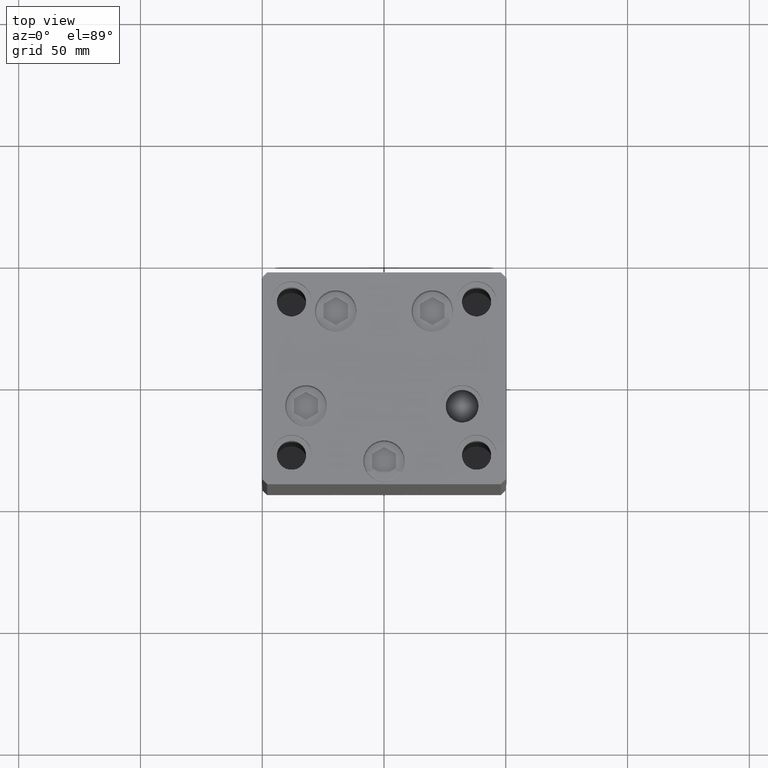
[diagram: clean part render]
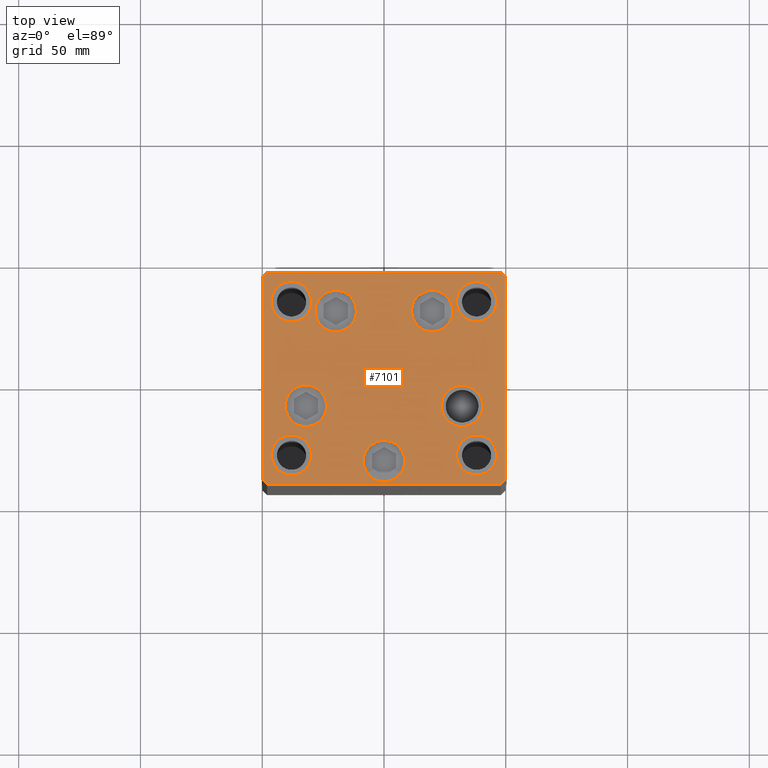
[diagram: same view with one face highlighted and labeled with its STEP entity id]
A machine part, top view. The second image highlights one B-rep face of the part: STEP entity #7101.
In plain terms, the highlighted planar face has unit normal (0, 0, 1).
Its self-contained STEP definition (entity closure, byte-faithful):
#205 = VERTEX_POINT ( 'NONE', #33631 ) ;
#304 = AXIS2_PLACEMENT_3D ( 'NONE', #5338, #43687, #9354 ) ;
#341 = ORIENTED_EDGE ( 'NONE', *, *, #17308, .F. ) ;
#440 = VERTEX_POINT ( 'NONE', #44360 ) ;
#477 = FACE_BOUND ( 'NONE', #21973, .T. ) ;
#513 = EDGE_CURVE ( 'NONE', #1787, #21603, #39942, .T. ) ;
#662 = CARTESIAN_POINT ( 'NONE',  ( -29.74999999999999289, -31.50000000000000000, 0.000000000000000000 ) ) ;
#839 = CARTESIAN_POINT ( 'NONE',  ( 38.00000000000000000, 31.49999999999999289, 0.000000000000000000 ) ) ;
#1787 = VERTEX_POINT ( 'NONE', #34531 ) ;
#1793 = CARTESIAN_POINT ( 'NONE',  ( 32.05550741379015278, -11.33333333333333037, 0.000000000000000000 ) ) ;
#2087 = EDGE_LOOP ( 'NONE', ( #5303, #35404 ) ) ;
#2246 = DIRECTION ( 'NONE',  ( -1.000000000000000000, -3.614007241618350743E-16, 0.000000000000000000 ) ) ;
#2784 = AXIS2_PLACEMENT_3D ( 'NONE', #25981, #44769, #25496 ) ;
#2920 = CARTESIAN_POINT ( 'NONE',  ( 38.00000000000000000, -31.49999999999999289, 0.000000000000000000 ) ) ;
#3234 = CARTESIAN_POINT ( 'NONE',  ( 32.05550741379015278, -11.33333333333333037, 0.000000000000000000 ) ) ;
#3672 = DIRECTION ( 'NONE',  ( 1.000000000000000000, 0.000000000000000000, 0.000000000000000000 ) ) ;
#3888 = CARTESIAN_POINT ( 'NONE',  ( -40.55550741379015278, -11.33333333333333925, 0.000000000000000000 ) ) ;
#4084 = EDGE_CURVE ( 'NONE', #28752, #22103, #4833, .T. ) ;
#4117 = DIRECTION ( 'NONE',  ( 1.000000000000000000, 0.000000000000000000, 0.000000000000000000 ) ) ;
#4322 = EDGE_CURVE ( 'NONE', #22103, #28752, #8106, .T. ) ;
#4381 = ORIENTED_EDGE ( 'NONE', *, *, #46055, .T. ) ;
#4833 = CIRCLE ( 'NONE', #32875, 8.250000000000000000 ) ;
#4961 = FACE_BOUND ( 'NONE', #18416, .T. ) ;
#5303 = ORIENTED_EDGE ( 'NONE', *, *, #7027, .F. ) ;
#5338 = CARTESIAN_POINT ( 'NONE',  ( 4.163799117101000559E-15, -34.00000000000000000, 0.000000000000000000 ) ) ;
#5455 = CARTESIAN_POINT ( 'NONE',  ( 28.32068048781373193, 27.62500000000000000, 0.000000000000000000 ) ) ;
#5464 = CARTESIAN_POINT ( 'NONE',  ( -11.32068048781373726, 27.62499999999999645, 0.000000000000000000 ) ) ;
#5755 = AXIS2_PLACEMENT_3D ( 'NONE', #27321, #27809, #20298 ) ;
#6160 = CARTESIAN_POINT ( 'NONE',  ( -37.99999999999999289, -31.50000000000000000, 0.000000000000000000 ) ) ;
#6283 = ORIENTED_EDGE ( 'NONE', *, *, #11471, .T. ) ;
#6287 = ORIENTED_EDGE ( 'NONE', *, *, #26118, .T. ) ;
#6290 = CARTESIAN_POINT ( 'NONE',  ( 19.82068048781373193, 27.62500000000000000, 0.000000000000000000 ) ) ;
#7027 = EDGE_CURVE ( 'NONE', #7407, #14510, #25008, .T. ) ;
#7101 = ADVANCED_FACE ( 'NONE', ( #11533, #39308, #38333, #477, #46349, #4961, #8502, #19574, #16283, #19322 ), #15799, .T. ) ;
#7407 = VERTEX_POINT ( 'NONE', #662 ) ;
#7505 = DIRECTION ( 'NONE',  ( 0.000000000000000000, -0.000000000000000000, -1.000000000000000000 ) ) ;
#7780 = VERTEX_POINT ( 'NONE', #27702 ) ;
#8106 = CIRCLE ( 'NONE', #12132, 8.250000000000000000 ) ;
#8401 = LINE ( 'NONE', #11424, #48410 ) ;
#8456 = ORIENTED_EDGE ( 'NONE', *, *, #33471, .T. ) ;
#8502 = FACE_BOUND ( 'NONE', #2087, .T. ) ;
#8710 = DIRECTION ( 'NONE',  ( 1.000000000000000000, 0.000000000000000000, 0.000000000000000000 ) ) ;
#9208 = DIRECTION ( 'NONE',  ( -0.7071067811865474617, 0.7071067811865474617, 0.000000000000000000 ) ) ;
#9246 = CARTESIAN_POINT ( 'NONE',  ( 19.82068048781373193, 27.62500000000000000, 0.000000000000000000 ) ) ;
#9354 = DIRECTION ( 'NONE',  ( 1.000000000000000000, 0.000000000000000000, 0.000000000000000000 ) ) ;
#9385 = EDGE_LOOP ( 'NONE', ( #10556, #21736, #34931, #6287, #4381, #35960, #13083, #11682 ) ) ;
#9390 = VERTEX_POINT ( 'NONE', #42163 ) ;
#9523 = DIRECTION ( 'NONE',  ( 0.7071067811865474617, -0.7071067811865474617, 0.000000000000000000 ) ) ;
#9577 = DIRECTION ( 'NONE',  ( 1.000000000000000000, 0.000000000000000000, 0.000000000000000000 ) ) ;
#9657 = CARTESIAN_POINT ( 'NONE',  ( 38.00000000000000000, 31.49999999999999289, 0.000000000000000000 ) ) ;
#9683 = VECTOR ( 'NONE', #2246, 1000.000000000000000 ) ;
#9778 = CIRCLE ( 'NONE', #27418, 8.499999999999992895 ) ;
#10440 = ORIENTED_EDGE ( 'NONE', *, *, #4084, .F. ) ;
#10524 = DIRECTION ( 'NONE',  ( 1.000000000000000000, 0.000000000000000000, 0.000000000000000000 ) ) ;
#10556 = ORIENTED_EDGE ( 'NONE', *, *, #13878, .T. ) ;
#10604 = VERTEX_POINT ( 'NONE', #44575 ) ;
#11424 = CARTESIAN_POINT ( 'NONE',  ( -50.00000000000000711, 41.49999999999995026, 0.000000000000000000 ) ) ;
#11471 = EDGE_CURVE ( 'NONE', #15583, #440, #38739, .T. ) ;
#11533 = FACE_BOUND ( 'NONE', #18092, .T. ) ;
#11682 = ORIENTED_EDGE ( 'NONE', *, *, #49176, .T. ) ;
#12132 = AXIS2_PLACEMENT_3D ( 'NONE', #839, #16162, #4117 ) ;
#12202 = AXIS2_PLACEMENT_3D ( 'NONE', #37835, #33343, #10524 ) ;
#12340 = VECTOR ( 'NONE', #9523, 1000.000000000000114 ) ;
#12977 = CARTESIAN_POINT ( 'NONE',  ( -32.05550741379015278, -11.33333333333333925, 0.000000000000000000 ) ) ;
#12982 = EDGE_CURVE ( 'NONE', #32765, #28135, #21116, .T. ) ;
#13083 = ORIENTED_EDGE ( 'NONE', *, *, #49017, .T. ) ;
#13095 = VECTOR ( 'NONE', #9208, 1000.000000000000114 ) ;
#13219 = DIRECTION ( 'NONE',  ( -1.003213576468515193E-15, 1.000000000000000000, 0.000000000000000000 ) ) ;
#13526 = VERTEX_POINT ( 'NONE', #37240 ) ;
#13800 = EDGE_CURVE ( 'NONE', #16009, #47664, #38692, .T. ) ;
#13815 = CARTESIAN_POINT ( 'NONE',  ( 47.99999999999999289, -43.50000000000001421, 0.000000000000000000 ) ) ;
#13878 = EDGE_CURVE ( 'NONE', #13526, #46249, #24344, .T. ) ;
#14147 = DIRECTION ( 'NONE',  ( 0.000000000000000000, 0.000000000000000000, 1.000000000000000000 ) ) ;
#14264 = AXIS2_PLACEMENT_3D ( 'NONE', #6290, #21610, #47404 ) ;
#14510 = VERTEX_POINT ( 'NONE', #22925 ) ;
#14535 = CARTESIAN_POINT ( 'NONE',  ( -19.82068048781373903, 27.62499999999999645, 0.000000000000000000 ) ) ;
#15522 = LINE ( 'NONE', #30802, #13095 ) ;
#15583 = VERTEX_POINT ( 'NONE', #20711 ) ;
#15694 = DIRECTION ( 'NONE',  ( 8.360113137237628665E-17, -1.000000000000000000, 0.000000000000000000 ) ) ;
#15720 = CARTESIAN_POINT ( 'NONE',  ( -19.82068048781373903, 27.62499999999999645, 0.000000000000000000 ) ) ;
#15799 = PLANE ( 'NONE',  #5755 ) ;
#15932 = CARTESIAN_POINT ( 'NONE',  ( 29.74999999999999645, 31.49999999999999289, 0.000000000000000000 ) ) ;
#16009 = VERTEX_POINT ( 'NONE', #47358 ) ;
#16035 = CARTESIAN_POINT ( 'NONE',  ( -29.75000000000000000, 31.50000000000000000, 0.000000000000000000 ) ) ;
#16042 = AXIS2_PLACEMENT_3D ( 'NONE', #15720, #19492, #22743 ) ;
#16162 = DIRECTION ( 'NONE',  ( 0.000000000000000000, 0.000000000000000000, 1.000000000000000000 ) ) ;
#16283 = FACE_BOUND ( 'NONE', #24253, .T. ) ;
#16957 = LINE ( 'NONE', #21226, #46365 ) ;
#17076 = LINE ( 'NONE', #32358, #9683 ) ;
#17133 = CIRCLE ( 'NONE', #33945, 8.250000000000000000 ) ;
#17308 = EDGE_CURVE ( 'NONE', #10604, #20390, #39600, .T. ) ;
#17574 = LINE ( 'NONE', #13815, #42320 ) ;
#17822 = CARTESIAN_POINT ( 'NONE',  ( 29.74999999999999645, -31.49999999999999289, 0.000000000000000000 ) ) ;
#17931 = AXIS2_PLACEMENT_3D ( 'NONE', #46320, #23284, #8710 ) ;
#18092 = EDGE_LOOP ( 'NONE', ( #37479, #8456 ) ) ;
#18241 = CARTESIAN_POINT ( 'NONE',  ( -38.00000000000000000, 31.50000000000000000, 0.000000000000000000 ) ) ;
#18349 = AXIS2_PLACEMENT_3D ( 'NONE', #14535, #22304, #22560 ) ;
#18416 = EDGE_LOOP ( 'NONE', ( #341, #31727 ) ) ;
#19322 = FACE_OUTER_BOUND ( 'NONE', #9385, .T. ) ;
#19492 = DIRECTION ( 'NONE',  ( 0.000000000000000000, -0.000000000000000000, -1.000000000000000000 ) ) ;
#19574 = FACE_BOUND ( 'NONE', #42065, .T. ) ;
#19743 = CARTESIAN_POINT ( 'NONE',  ( -48.00000000000000711, 43.49999999999996447, 0.000000000000000000 ) ) ;
#20298 = DIRECTION ( 'NONE',  ( 1.000000000000000000, 0.000000000000000000, 0.000000000000000000 ) ) ;
#20390 = VERTEX_POINT ( 'NONE', #17822 ) ;
#20711 = CARTESIAN_POINT ( 'NONE',  ( -8.499999999999996447, -34.00000000000000000, 0.000000000000000000 ) ) ;
#21014 = CIRCLE ( 'NONE', #33806, 8.250000000000000000 ) ;
#21050 = DIRECTION ( 'NONE',  ( 1.000000000000000000, 0.000000000000000000, 0.000000000000000000 ) ) ;
#21116 = CIRCLE ( 'NONE', #41875, 8.500000000000000000 ) ;
#21226 = CARTESIAN_POINT ( 'NONE',  ( -47.99999999999999289, -43.50000000000001421, 0.000000000000000000 ) ) ;
#21334 = CARTESIAN_POINT ( 'NONE',  ( -50.00000000000000000, -41.50000000000000000, 0.000000000000000000 ) ) ;
#21603 = VERTEX_POINT ( 'NONE', #5464 ) ;
#21610 = DIRECTION ( 'NONE',  ( 0.000000000000000000, -0.000000000000000000, -1.000000000000000000 ) ) ;
#21736 = ORIENTED_EDGE ( 'NONE', *, *, #32255, .T. ) ;
#21973 = EDGE_LOOP ( 'NONE', ( #6283, #33199 ) ) ;
#22103 = VERTEX_POINT ( 'NONE', #15932 ) ;
#22304 = DIRECTION ( 'NONE',  ( 0.000000000000000000, -0.000000000000000000, -1.000000000000000000 ) ) ;
#22560 = DIRECTION ( 'NONE',  ( 1.000000000000000000, 0.000000000000000000, 0.000000000000000000 ) ) ;
#22743 = DIRECTION ( 'NONE',  ( 1.000000000000000000, 0.000000000000000000, 0.000000000000000000 ) ) ;
#22925 = CARTESIAN_POINT ( 'NONE',  ( -46.24999999999999289, -31.50000000000000000, 0.000000000000000000 ) ) ;
#23284 = DIRECTION ( 'NONE',  ( 0.000000000000000000, -0.000000000000000000, -1.000000000000000000 ) ) ;
#23483 = CIRCLE ( 'NONE', #43444, 8.500000000000000000 ) ;
#23875 = EDGE_CURVE ( 'NONE', #28135, #32765, #35052, .T. ) ;
#23880 = ORIENTED_EDGE ( 'NONE', *, *, #13800, .F. ) ;
#24139 = EDGE_CURVE ( 'NONE', #26294, #38173, #41430, .T. ) ;
#24241 = DIRECTION ( 'NONE',  ( 1.000000000000000000, 0.000000000000000000, 0.000000000000000000 ) ) ;
#24253 = EDGE_LOOP ( 'NONE', ( #10440, #31706 ) ) ;
#24344 = LINE ( 'NONE', #21334, #12340 ) ;
#24397 = VECTOR ( 'NONE', #47456, 1000.000000000000000 ) ;
#24399 = DIRECTION ( 'NONE',  ( 0.000000000000000000, -0.000000000000000000, -1.000000000000000000 ) ) ;
#25008 = CIRCLE ( 'NONE', #12202, 8.250000000000000000 ) ;
#25351 = VERTEX_POINT ( 'NONE', #43259 ) ;
#25496 = DIRECTION ( 'NONE',  ( 1.000000000000000000, 0.000000000000000000, 0.000000000000000000 ) ) ;
#25739 = VERTEX_POINT ( 'NONE', #32685 ) ;
#25981 = CARTESIAN_POINT ( 'NONE',  ( 38.00000000000000000, -31.49999999999999289, 0.000000000000000000 ) ) ;
#26118 = EDGE_CURVE ( 'NONE', #205, #25739, #47525, .T. ) ;
#26294 = VERTEX_POINT ( 'NONE', #3888 ) ;
#26484 = EDGE_LOOP ( 'NONE', ( #35887, #30413 ) ) ;
#27062 = CIRCLE ( 'NONE', #35074, 8.499999999999992895 ) ;
#27321 = CARTESIAN_POINT ( 'NONE',  ( 0.000000000000000000, 0.000000000000000000, 0.000000000000000000 ) ) ;
#27418 = AXIS2_PLACEMENT_3D ( 'NONE', #1793, #24399, #9577 ) ;
#27702 = CARTESIAN_POINT ( 'NONE',  ( -50.00000000000000711, 41.49999999999995026, 0.000000000000000000 ) ) ;
#27809 = DIRECTION ( 'NONE',  ( -0.000000000000000000, 0.000000000000000000, 1.000000000000000000 ) ) ;
#27894 = EDGE_CURVE ( 'NONE', #9390, #35519, #27062, .T. ) ;
#28135 = VERTEX_POINT ( 'NONE', #5455 ) ;
#28752 = VERTEX_POINT ( 'NONE', #44621 ) ;
#28836 = CIRCLE ( 'NONE', #16042, 8.500000000000000000 ) ;
#29111 = EDGE_CURVE ( 'NONE', #14510, #7407, #43058, .T. ) ;
#29119 = CIRCLE ( 'NONE', #17931, 8.500000000000000000 ) ;
#29379 = VECTOR ( 'NONE', #13219, 1000.000000000000000 ) ;
#29424 = ORIENTED_EDGE ( 'NONE', *, *, #24139, .T. ) ;
#30332 = CARTESIAN_POINT ( 'NONE',  ( 47.99999999999999289, -43.50000000000001421, 0.000000000000000000 ) ) ;
#30413 = ORIENTED_EDGE ( 'NONE', *, *, #27894, .T. ) ;
#30484 = EDGE_CURVE ( 'NONE', #48389, #205, #17574, .T. ) ;
#30802 = CARTESIAN_POINT ( 'NONE',  ( 49.99999999999992184, 41.49999999999998579, 0.000000000000000000 ) ) ;
#31706 = ORIENTED_EDGE ( 'NONE', *, *, #4322, .F. ) ;
#31727 = ORIENTED_EDGE ( 'NONE', *, *, #43450, .F. ) ;
#31875 = CARTESIAN_POINT ( 'NONE',  ( 11.32068048781373015, 27.62500000000000000, 0.000000000000000000 ) ) ;
#31938 = LINE ( 'NONE', #47200, #24397 ) ;
#32102 = DIRECTION ( 'NONE',  ( 0.7071067811865463515, 0.7071067811865487940, 0.000000000000000000 ) ) ;
#32255 = EDGE_CURVE ( 'NONE', #46249, #48389, #16957, .T. ) ;
#32358 = CARTESIAN_POINT ( 'NONE',  ( 47.99999999999990763, 43.50000000000000000, 0.000000000000000000 ) ) ;
#32516 = ORIENTED_EDGE ( 'NONE', *, *, #12982, .T. ) ;
#32685 = CARTESIAN_POINT ( 'NONE',  ( 49.99999999999992184, 41.49999999999998579, 0.000000000000000000 ) ) ;
#32765 = VERTEX_POINT ( 'NONE', #31875 ) ;
#32875 = AXIS2_PLACEMENT_3D ( 'NONE', #9657, #47749, #47246 ) ;
#33199 = ORIENTED_EDGE ( 'NONE', *, *, #44825, .T. ) ;
#33343 = DIRECTION ( 'NONE',  ( 0.000000000000000000, 0.000000000000000000, 1.000000000000000000 ) ) ;
#33471 = EDGE_CURVE ( 'NONE', #21603, #1787, #28836, .T. ) ;
#33521 = DIRECTION ( 'NONE',  ( 0.000000000000000000, 0.000000000000000000, 1.000000000000000000 ) ) ;
#33608 = DIRECTION ( 'NONE',  ( 0.000000000000000000, -0.000000000000000000, -1.000000000000000000 ) ) ;
#33631 = CARTESIAN_POINT ( 'NONE',  ( 50.00000000000000000, -41.49999999999999289, 0.000000000000000000 ) ) ;
#33806 = AXIS2_PLACEMENT_3D ( 'NONE', #2920, #45785, #3672 ) ;
#33945 = AXIS2_PLACEMENT_3D ( 'NONE', #18241, #33521, #48786 ) ;
#34451 = ORIENTED_EDGE ( 'NONE', *, *, #23875, .T. ) ;
#34531 = CARTESIAN_POINT ( 'NONE',  ( -28.32068048781373903, 27.62499999999999645, 0.000000000000000000 ) ) ;
#34931 = ORIENTED_EDGE ( 'NONE', *, *, #30484, .T. ) ;
#35052 = CIRCLE ( 'NONE', #14264, 8.500000000000000000 ) ;
#35074 = AXIS2_PLACEMENT_3D ( 'NONE', #3234, #7505, #37834 ) ;
#35404 = ORIENTED_EDGE ( 'NONE', *, *, #29111, .F. ) ;
#35519 = VERTEX_POINT ( 'NONE', #48426 ) ;
#35782 = EDGE_CURVE ( 'NONE', #25351, #36447, #17076, .T. ) ;
#35887 = ORIENTED_EDGE ( 'NONE', *, *, #42623, .T. ) ;
#35960 = ORIENTED_EDGE ( 'NONE', *, *, #35782, .T. ) ;
#36447 = VERTEX_POINT ( 'NONE', #19743 ) ;
#36939 = DIRECTION ( 'NONE',  ( 1.000000000000000000, 0.000000000000000000, 0.000000000000000000 ) ) ;
#37240 = CARTESIAN_POINT ( 'NONE',  ( -50.00000000000000000, -41.50000000000000000, 0.000000000000000000 ) ) ;
#37479 = ORIENTED_EDGE ( 'NONE', *, *, #513, .T. ) ;
#37484 = AXIS2_PLACEMENT_3D ( 'NONE', #6160, #47023, #24241 ) ;
#37547 = EDGE_LOOP ( 'NONE', ( #32516, #34451 ) ) ;
#37834 = DIRECTION ( 'NONE',  ( 1.000000000000000000, 0.000000000000000000, 0.000000000000000000 ) ) ;
#37835 = CARTESIAN_POINT ( 'NONE',  ( -37.99999999999999289, -31.50000000000000000, 0.000000000000000000 ) ) ;
#38173 = VERTEX_POINT ( 'NONE', #45726 ) ;
#38333 = FACE_BOUND ( 'NONE', #26484, .T. ) ;
#38692 = CIRCLE ( 'NONE', #45080, 8.250000000000000000 ) ;
#38739 = CIRCLE ( 'NONE', #304, 8.500000000000000000 ) ;
#39308 = FACE_BOUND ( 'NONE', #37547, .T. ) ;
#39600 = CIRCLE ( 'NONE', #2784, 8.250000000000000000 ) ;
#39942 = CIRCLE ( 'NONE', #18349, 8.500000000000000000 ) ;
#39983 = DIRECTION ( 'NONE',  ( 1.000000000000000000, 0.000000000000000000, 0.000000000000000000 ) ) ;
#40012 = DIRECTION ( 'NONE',  ( 1.000000000000000000, 0.000000000000000000, 0.000000000000000000 ) ) ;
#40314 = DIRECTION ( 'NONE',  ( 0.000000000000000000, -0.000000000000000000, -1.000000000000000000 ) ) ;
#41430 = CIRCLE ( 'NONE', #45444, 8.500000000000000000 ) ;
#41875 = AXIS2_PLACEMENT_3D ( 'NONE', #9246, #40314, #21050 ) ;
#42065 = EDGE_LOOP ( 'NONE', ( #42663, #23880 ) ) ;
#42163 = CARTESIAN_POINT ( 'NONE',  ( 40.55550741379014568, -11.33333333333332860, 0.000000000000000000 ) ) ;
#42320 = VECTOR ( 'NONE', #32102, 1000.000000000000000 ) ;
#42623 = EDGE_CURVE ( 'NONE', #35519, #9390, #9778, .T. ) ;
#42663 = ORIENTED_EDGE ( 'NONE', *, *, #47193, .F. ) ;
#43058 = CIRCLE ( 'NONE', #37484, 8.250000000000000000 ) ;
#43259 = CARTESIAN_POINT ( 'NONE',  ( 47.99999999999990763, 43.50000000000000000, 0.000000000000000000 ) ) ;
#43444 = AXIS2_PLACEMENT_3D ( 'NONE', #48627, #33608, #49138 ) ;
#43450 = EDGE_CURVE ( 'NONE', #20390, #10604, #21014, .T. ) ;
#43532 = DIRECTION ( 'NONE',  ( 0.000000000000000000, -0.000000000000000000, -1.000000000000000000 ) ) ;
#43687 = DIRECTION ( 'NONE',  ( 0.000000000000000000, -0.000000000000000000, -1.000000000000000000 ) ) ;
#44360 = CARTESIAN_POINT ( 'NONE',  ( 8.500000000000003553, -34.00000000000000000, 0.000000000000000000 ) ) ;
#44575 = CARTESIAN_POINT ( 'NONE',  ( 46.25000000000000000, -31.49999999999999289, 0.000000000000000000 ) ) ;
#44621 = CARTESIAN_POINT ( 'NONE',  ( 46.25000000000000000, 31.49999999999999289, 0.000000000000000000 ) ) ;
#44769 = DIRECTION ( 'NONE',  ( 0.000000000000000000, 0.000000000000000000, 1.000000000000000000 ) ) ;
#44773 = CARTESIAN_POINT ( 'NONE',  ( -47.99999999999999289, -43.50000000000001421, 0.000000000000000000 ) ) ;
#44825 = EDGE_CURVE ( 'NONE', #440, #15583, #23483, .T. ) ;
#44936 = ORIENTED_EDGE ( 'NONE', *, *, #46001, .T. ) ;
#45080 = AXIS2_PLACEMENT_3D ( 'NONE', #48691, #14147, #36939 ) ;
#45444 = AXIS2_PLACEMENT_3D ( 'NONE', #12977, #43532, #40012 ) ;
#45726 = CARTESIAN_POINT ( 'NONE',  ( -23.55550741379015278, -11.33333333333333748, 0.000000000000000000 ) ) ;
#45785 = DIRECTION ( 'NONE',  ( 0.000000000000000000, 0.000000000000000000, 1.000000000000000000 ) ) ;
#46001 = EDGE_CURVE ( 'NONE', #38173, #26294, #29119, .T. ) ;
#46055 = EDGE_CURVE ( 'NONE', #25739, #25351, #15522, .T. ) ;
#46249 = VERTEX_POINT ( 'NONE', #44773 ) ;
#46320 = CARTESIAN_POINT ( 'NONE',  ( -32.05550741379015278, -11.33333333333333925, 0.000000000000000000 ) ) ;
#46349 = FACE_BOUND ( 'NONE', #49329, .T. ) ;
#46365 = VECTOR ( 'NONE', #39983, 1000.000000000000000 ) ;
#46790 = CARTESIAN_POINT ( 'NONE',  ( 50.00000000000000000, -41.49999999999999289, 0.000000000000000000 ) ) ;
#47023 = DIRECTION ( 'NONE',  ( 0.000000000000000000, 0.000000000000000000, 1.000000000000000000 ) ) ;
#47193 = EDGE_CURVE ( 'NONE', #47664, #16009, #17133, .T. ) ;
#47200 = CARTESIAN_POINT ( 'NONE',  ( -48.00000000000000711, 43.49999999999996447, 0.000000000000000000 ) ) ;
#47246 = DIRECTION ( 'NONE',  ( 1.000000000000000000, 0.000000000000000000, 0.000000000000000000 ) ) ;
#47358 = CARTESIAN_POINT ( 'NONE',  ( -46.25000000000000000, 31.50000000000000000, 0.000000000000000000 ) ) ;
#47404 = DIRECTION ( 'NONE',  ( 1.000000000000000000, 0.000000000000000000, 0.000000000000000000 ) ) ;
#47456 = DIRECTION ( 'NONE',  ( -0.7071067811865463515, -0.7071067811865487940, 0.000000000000000000 ) ) ;
#47525 = LINE ( 'NONE', #46790, #29379 ) ;
#47664 = VERTEX_POINT ( 'NONE', #16035 ) ;
#47749 = DIRECTION ( 'NONE',  ( 0.000000000000000000, 0.000000000000000000, 1.000000000000000000 ) ) ;
#48389 = VERTEX_POINT ( 'NONE', #30332 ) ;
#48410 = VECTOR ( 'NONE', #15694, 1000.000000000000000 ) ;
#48426 = CARTESIAN_POINT ( 'NONE',  ( 23.55550741379015633, -11.33333333333333037, 0.000000000000000000 ) ) ;
#48627 = CARTESIAN_POINT ( 'NONE',  ( 4.163799117101000559E-15, -34.00000000000000000, 0.000000000000000000 ) ) ;
#48691 = CARTESIAN_POINT ( 'NONE',  ( -38.00000000000000000, 31.50000000000000000, 0.000000000000000000 ) ) ;
#48786 = DIRECTION ( 'NONE',  ( 1.000000000000000000, 0.000000000000000000, 0.000000000000000000 ) ) ;
#49017 = EDGE_CURVE ( 'NONE', #36447, #7780, #31938, .T. ) ;
#49138 = DIRECTION ( 'NONE',  ( 1.000000000000000000, 0.000000000000000000, 0.000000000000000000 ) ) ;
#49176 = EDGE_CURVE ( 'NONE', #7780, #13526, #8401, .T. ) ;
#49329 = EDGE_LOOP ( 'NONE', ( #29424, #44936 ) ) ;